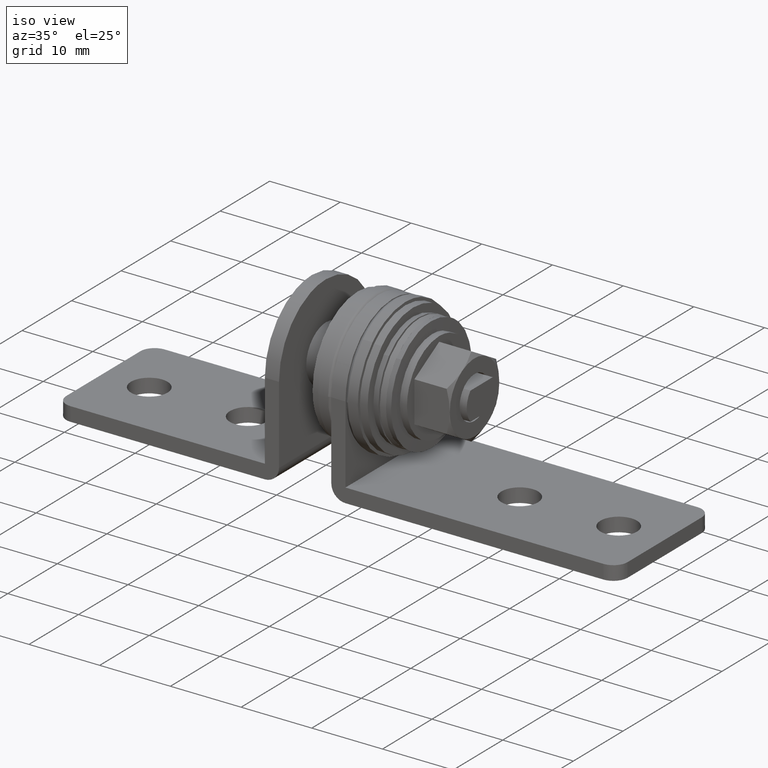
[diagram: clean part render]
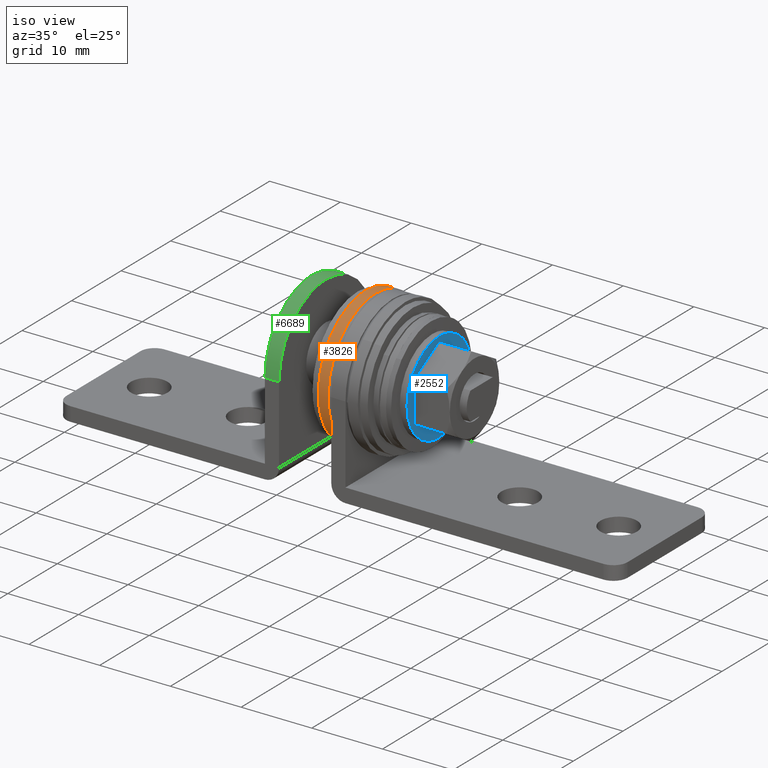
[diagram: same view with three faces highlighted in distinct colors, each labeled with its STEP entity id]
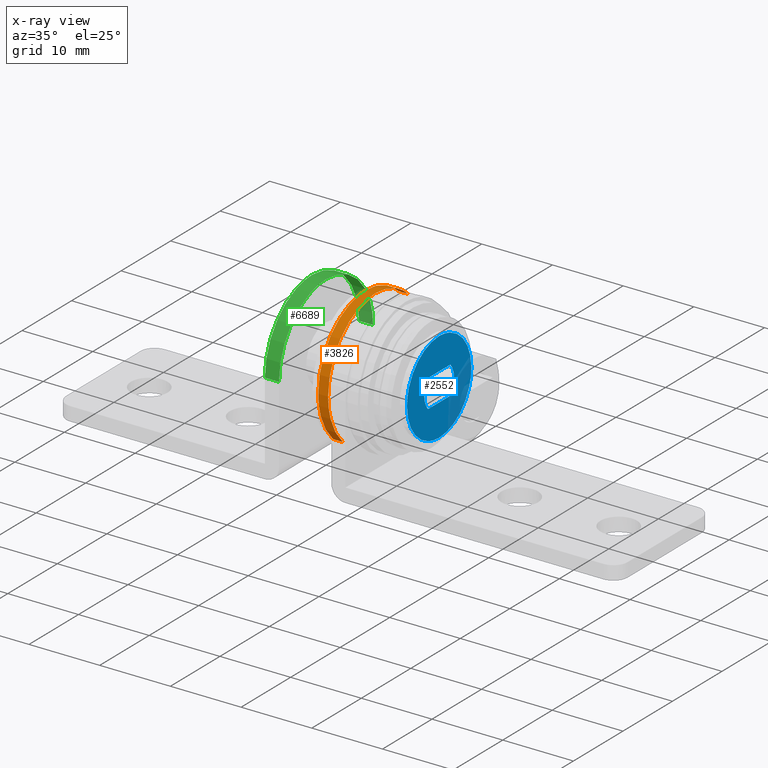
[diagram: x-ray of the same camera — body ghosted, the three highlighted faces saturated]
A machine part, iso view with three faces highlighted in distinct colors.
The next image is the same camera in x-ray (body ghosted, the three faces saturated) — at least one of them is partly hidden behind the body in this view.
Their STEP definitions:

[orange] entity #3826 — the highlighted face is a freeform B-spline surface patch.
#3245=CARTESIAN_POINT('',(7.000000001843407,-9.574999999999998,-1.331961E-014));
#3246=VERTEX_POINT('',#3245);
#3247=CARTESIAN_POINT('',(7.0,0.0,9.574999999999999));
#3248=VERTEX_POINT('',#3247);
#3249=CARTESIAN_POINT('',(7.000000001843407,-9.574999999999998,-1.331961E-014));
#3250=CARTESIAN_POINT('',(7.000000001786837,-9.575065300230753,0.587516732626124));
#3251=CARTESIAN_POINT('',(7.000000001673622,-9.475544291483420,1.664602495511528));
#3252=CARTESIAN_POINT('',(7.000000001509278,-9.115980017865249,3.011995462692536));
#3253=CARTESIAN_POINT('',(7.000000001344453,-8.620708814326063,4.228766799101693));
#3254=CARTESIAN_POINT('',(7.000000001187254,-8.030014796946121,5.271500300797510));
#3255=CARTESIAN_POINT('',(7.000000001009844,-7.230937467794300,6.315042081671660));
#3256=CARTESIAN_POINT('',(7.000000000836262,-6.334346550919273,7.222734181321780));
#3257=CARTESIAN_POINT('',(7.000000000669170,-5.349792724302551,7.971812144434629));
#3258=CARTESIAN_POINT('',(7.000000000486334,-4.144706213302773,8.669261751478709));
#3259=CARTESIAN_POINT('',(7.000000000323674,-2.939490900693783,9.151232044992161));
#3260=CARTESIAN_POINT('',(7.000000000149071,-1.468763285321292,9.495697102420269));
#3261=CARTESIAN_POINT('',(7.000000000052665,-0.548344357685661,9.575050803645766));
#3262=CARTESIAN_POINT('',(7.0,0.0,9.574999999999999));
#3263=B_SPLINE_CURVE_WITH_KNOTS('',3,(#3249,#3250,#3251,#3252,#3253,#3254,#3255,#3256,#3257,#3258,#3259,#3260,#3261,#3262),.UNSPECIFIED.,.F.,.U.,(4,1,1,1,1,1,1,1,1,1,1,4),(0.000000052687485,1.762538470771119,3.231332487533239,4.171362540858786,5.698902435431084,6.815200604752954,8.107697954677990,9.517736135739654,10.516527898758010,12.279076528888851,13.395373297230529,15.040398423046410),.UNSPECIFIED.);
#3264=EDGE_CURVE('',#3246,#3248,#3263,.T.);
#3325=CARTESIAN_POINT('',(7.000000000887582,6.590995047172648,6.945459616767318));
#3326=VERTEX_POINT('',#3325);
#3337=CARTESIAN_POINT('',(7.0,0.0,9.574999999999999));
#3338=CARTESIAN_POINT('',(7.000000000051023,0.530070574843590,9.575041883769375));
#3339=CARTESIAN_POINT('',(7.000000000157622,1.552334578589658,9.489893541043735));
#3340=CARTESIAN_POINT('',(7.000000000330322,2.989774696307046,9.133284675177393));
#3341=CARTESIAN_POINT('',(7.000000000492553,4.182706320588737,8.640844724963483));
#3342=CARTESIAN_POINT('',(7.000000000676647,5.402922615886867,7.948609635709143));
#3343=CARTESIAN_POINT('',(7.000000000805140,6.151617712857685,7.362522889965496));
#3344=CARTESIAN_POINT('',(7.000000000887582,6.590995047172648,6.945459616767318));
#3345=B_SPLINE_CURVE_WITH_KNOTS('',3,(#3337,#3338,#3339,#3340,#3341,#3342,#3343,#3344),.UNSPECIFIED.,.F.,.U.,(4,1,1,1,1,4),(5.374247E-009,1.590213461122649,3.066850167805985,4.429880036473404,5.452167828545722,7.269557102936135),.UNSPECIFIED.);
#3346=EDGE_CURVE('',#3248,#3326,#3345,.T.);
#3380=CARTESIAN_POINT('',(7.000000000887582,-6.590995047172648,-6.945459616767317));
#3381=VERTEX_POINT('',#3380);
#3382=CARTESIAN_POINT('',(7.000000000887582,-6.590995047172648,-6.945459616767317));
#3383=CARTESIAN_POINT('',(7.000000000967432,-7.016732327056829,-6.541530507234878));
#3384=CARTESIAN_POINT('',(7.000000001102751,-7.672985864009467,-5.792587908505754));
#3385=CARTESIAN_POINT('',(7.000000001320885,-8.551484624012055,-4.404789018725831));
#3386=CARTESIAN_POINT('',(7.000000001497807,-9.097316798217850,-3.111772616511035));
#3387=CARTESIAN_POINT('',(7.000000001684815,-9.484208611440474,-1.558191384182863));
#3388=CARTESIAN_POINT('',(7.000000001784718,-9.575079131411505,-0.607105421308737));
#3389=CARTESIAN_POINT('',(7.000000001843407,-9.574999999999998,-1.331961E-014));
#3390=B_SPLINE_CURVE_WITH_KNOTS('',3,(#3382,#3383,#3384,#3385,#3386,#3387,#3388,#3389),.UNSPECIFIED.,.F.,.U.,(4,1,1,1,1,4),(0.000000014444240,1.760587869820638,2.974790173644349,4.917504224431657,5.949575241573528,7.770873365595068),.UNSPECIFIED.);
#3391=EDGE_CURVE('',#3381,#3246,#3390,.T.);
#3700=CARTESIAN_POINT('',(5.600000000000001,6.590994857505450,6.945459419185621));
#3701=VERTEX_POINT('',#3700);
#3715=CARTESIAN_POINT('',(7.000000000887582,6.590995047172648,6.945459616767318));
#3716=CARTESIAN_POINT('',(5.600000000000001,6.590994857505450,6.945459419185621));
#3717=QUASI_UNIFORM_CURVE('',1,(#3715,#3716),.UNSPECIFIED.,.F.,.U.);
#3718=EDGE_CURVE('',#3326,#3701,#3717,.T.);
#3723=CARTESIAN_POINT('',(5.600000000000001,-6.590994857505478,-6.945459419185648));
#3724=VERTEX_POINT('',#3723);
#3725=CARTESIAN_POINT('',(7.000000000887582,-6.590995047172648,-6.945459616767317));
#3726=CARTESIAN_POINT('',(5.600000000000001,-6.590994857505478,-6.945459419185648));
#3727=QUASI_UNIFORM_CURVE('',1,(#3725,#3726),.UNSPECIFIED.,.F.,.U.);
#3728=EDGE_CURVE('',#3381,#3724,#3727,.T.);
#3762=CARTESIAN_POINT('',(7.035000001889493,-6.590995062267693,-6.945459602442653));
#3763=CARTESIAN_POINT('',(7.035000001889494,-13.536454664710345,-0.354464540174960));
#3764=CARTESIAN_POINT('',(7.035000001889493,-6.945459602442653,6.590995062267693));
#3765=CARTESIAN_POINT('',(7.035000001889494,-0.354464540174960,13.536454664710345));
#3766=CARTESIAN_POINT('',(7.035000001889493,6.590995062267693,6.945459602442653));
#3767=CARTESIAN_POINT('',(5.564124999952762,-6.590995062267693,-6.945459602442653));
#3768=CARTESIAN_POINT('',(5.564124999952762,-13.536454664710345,-0.354464540174960));
#3769=CARTESIAN_POINT('',(5.564124999952762,-6.945459602442653,6.590995062267693));
#3770=CARTESIAN_POINT('',(5.564124999952762,-0.354464540174960,13.536454664710345));
#3771=CARTESIAN_POINT('',(5.564124999952762,6.590995062267693,6.945459602442653));
#3779=(BOUNDED_SURFACE()B_SPLINE_SURFACE(2,1,((#3762,#3767),(#3763,#3768),(#3764,#3769),(#3765,#3770),(#3766,#3771)),.UNSPECIFIED.,.F.,.F.,.U.)B_SPLINE_SURFACE_WITH_KNOTS((3,2,3),(2,2),(0.0,15.864379438889539,31.728758877779072),(0.0,1.0),.UNSPECIFIED.)GEOMETRIC_REPRESENTATION_ITEM()RATIONAL_B_SPLINE_SURFACE(((1.0,1.0),(0.707106781186548,0.707106781186548),(1.0,1.0),(0.707106781186548,0.707106781186548),(1.0,1.0)))REPRESENTATION_ITEM('')SURFACE());
#3780=CARTESIAN_POINT('',(5.600000000000000,0.0,9.574999999999999));
#3781=VERTEX_POINT('',#3780);
#3782=CARTESIAN_POINT('',(5.600000000000000,0.0,9.574999999999999));
#3783=CARTESIAN_POINT('',(5.599999999999985,0.530066177181078,9.575028414568925));
#3784=CARTESIAN_POINT('',(5.600000000000016,1.703796759398604,9.477339199104309));
#3785=CARTESIAN_POINT('',(5.599999999999968,3.465764037984421,8.995629109281651));
#3786=CARTESIAN_POINT('',(5.600000000000097,5.163389577133457,8.136228149900415));
#3787=CARTESIAN_POINT('',(5.599999999999951,6.151607778543334,7.362507989877304));
#3788=CARTESIAN_POINT('',(5.600000000000001,6.590994857505450,6.945459419185621));
#3789=B_SPLINE_CURVE_WITH_KNOTS('',3,(#3782,#3783,#3784,#3785,#3786,#3787,#3788),.UNSPECIFIED.,.F.,.U.,(4,1,1,1,4),(5.371217E-009,1.590213438037686,3.521193318366556,5.452167749393814,7.269556997395088),.UNSPECIFIED.);
#3790=EDGE_CURVE('',#3781,#3701,#3789,.T.);
#3791=ORIENTED_EDGE('',*,*,#3790,.F.);
#3792=CARTESIAN_POINT('',(5.600000000000000,-9.574999999999937,0.000001097019174));
#3793=VERTEX_POINT('',#3792);
#3794=CARTESIAN_POINT('',(5.600000000000000,-9.574999999999937,0.000001097019174));
#3795=CARTESIAN_POINT('',(5.600000000000008,-9.575056144547215,0.587516569133459));
#3796=CARTESIAN_POINT('',(5.599999999999994,-9.468328211257504,1.742941369989528));
#3797=CARTESIAN_POINT('',(5.599999999999986,-9.028270940121166,3.314387353062296));
#3798=CARTESIAN_POINT('',(5.600000000000047,-8.315613740126473,4.845464194986282));
#3799=CARTESIAN_POINT('',(5.599999999999980,-7.424117299339975,6.119586410575806));
#3800=CARTESIAN_POINT('',(5.600000000000017,-6.320539273714079,7.236692284271585));
#3801=CARTESIAN_POINT('',(5.599999999999977,-5.114152489054289,8.148806899774309));
#3802=CARTESIAN_POINT('',(5.599999999999977,-3.700120133548185,8.882459223467185));
#3803=CARTESIAN_POINT('',(5.600000000000037,-1.958318358241487,9.434229543559685));
#3804=CARTESIAN_POINT('',(5.599999999999972,-0.724615005283694,9.575153714692322));
#3805=CARTESIAN_POINT('',(5.600000000000000,0.0,9.574999999999999));
#3806=B_SPLINE_CURVE_WITH_KNOTS('',3,(#3794,#3795,#3796,#3797,#3798,#3799,#3800,#3801,#3802,#3803,#3804,#3805),.UNSPECIFIED.,.F.,.U.,(4,1,1,1,1,1,1,1,1,4),(0.000000052737061,1.762538398308241,3.466340120901622,4.876382443556571,6.815200324424493,8.107697620977472,9.576498625328878,11.339049933463009,12.866594184182590,15.040397804747240),.UNSPECIFIED.);
#3807=EDGE_CURVE('',#3793,#3781,#3806,.T.);
#3808=ORIENTED_EDGE('',*,*,#3807,.F.);
#3809=CARTESIAN_POINT('',(5.600000000000001,-6.590994857505478,-6.945459419185648));
#3810=CARTESIAN_POINT('',(5.600000000000024,-7.193042682515891,-6.374491183544041));
#3811=CARTESIAN_POINT('',(5.599999999999953,-7.989847611840371,-5.391672302332482));
#3812=CARTESIAN_POINT('',(5.600000000000066,-8.878759471107449,-3.705089857772215));
#3813=CARTESIAN_POINT('',(5.599999999999971,-9.430430293253911,-2.023626161470892));
#3814=CARTESIAN_POINT('',(5.600000000000007,-9.575111559585420,-0.688051981345868));
#3815=CARTESIAN_POINT('',(5.600000000000000,-9.574999999999937,0.000001097019174));
#3816=B_SPLINE_CURVE_WITH_KNOTS('',3,(#3809,#3810,#3811,#3812,#3813,#3814,#3815),.UNSPECIFIED.,.F.,.U.,(4,1,1,1,4),(0.000000014448397,2.489112788928425,3.764021907486394,5.706735548933652,7.770874353055943),.UNSPECIFIED.);
#3817=EDGE_CURVE('',#3724,#3793,#3816,.T.);
#3818=ORIENTED_EDGE('',*,*,#3817,.F.);
#3819=ORIENTED_EDGE('',*,*,#3728,.F.);
#3820=ORIENTED_EDGE('',*,*,#3391,.T.);
#3821=ORIENTED_EDGE('',*,*,#3264,.T.);
#3822=ORIENTED_EDGE('',*,*,#3346,.T.);
#3823=ORIENTED_EDGE('',*,*,#3718,.T.);
#3824=EDGE_LOOP('',(#3791,#3808,#3818,#3819,#3820,#3821,#3822,#3823));
#3825=FACE_OUTER_BOUND('',#3824,.T.);
#3826=ADVANCED_FACE('',(#3825),#3779,.T.);

[blue] entity #2552 — the highlighted face is a freeform B-spline surface patch.
#2252=CARTESIAN_POINT('',(15.999999999917749,4.792302841791557,4.391336420869900));
#2253=VERTEX_POINT('',#2252);
#2259=CARTESIAN_POINT('',(15.999999999917749,6.499999999976643,0.000000645226018));
#2260=VERTEX_POINT('',#2259);
#2261=CARTESIAN_POINT('',(15.999999999917749,6.499999999976643,0.000000645226018));
#2262=CARTESIAN_POINT('',(15.999999999917771,6.500015795782520,0.351565430104913));
#2263=CARTESIAN_POINT('',(15.999999999917740,6.436714552915150,1.130035541484011));
#2264=CARTESIAN_POINT('',(15.999999999917771,6.111487784328303,2.349098613870125));
#2265=CARTESIAN_POINT('',(15.999999999917760,5.540033457296417,3.475672301886363));
#2266=CARTESIAN_POINT('',(15.999999999917740,5.029821983807251,4.132141663200727));
#2267=CARTESIAN_POINT('',(15.999999999917749,4.792302841791557,4.391336420869900));
#2268=B_SPLINE_CURVE_WITH_KNOTS('',3,(#2261,#2262,#2263,#2264,#2265,#2266,#2267),.UNSPECIFIED.,.F.,.U.,(4,1,1,1,4),(0.000000016921617,1.054702239702986,2.335423884652828,3.766796184556690,4.821498407338583),.UNSPECIFIED.);
#2269=EDGE_CURVE('',#2260,#2253,#2268,.T.);
#2271=CARTESIAN_POINT('',(15.999999999917749,-8.526513E-014,-6.499999999976760));
#2272=VERTEX_POINT('',#2271);
#2273=CARTESIAN_POINT('',(15.999999999917749,-8.526513E-014,-6.499999999976760));
#2274=CARTESIAN_POINT('',(15.999999999917719,0.584980960622043,-6.500209817820744));
#2275=CARTESIAN_POINT('',(15.999999999917771,1.515475157569317,-6.373474942612306));
#2276=CARTESIAN_POINT('',(15.999999999917760,2.743363608762771,-5.925578759355686));
#2277=CARTESIAN_POINT('',(15.999999999917691,3.579290087873212,-5.452021241792743));
#2278=CARTESIAN_POINT('',(15.999999999917749,4.338648967096136,-4.866858321992026));
#2279=CARTESIAN_POINT('',(15.999999999917719,5.032245616253382,-4.164757966093843));
#2280=CARTESIAN_POINT('',(15.999999999917710,5.580890148790245,-3.375455807531805));
#2281=CARTESIAN_POINT('',(15.999999999917870,6.023752305642542,-2.495642727028375));
#2282=CARTESIAN_POINT('',(15.999999999917410,6.388400063121082,-1.435748915387337));
#2283=CARTESIAN_POINT('',(15.999999999918151,6.500148243442589,-0.531793716678041));
#2284=CARTESIAN_POINT('',(15.999999999917749,6.499999999976643,0.000000645226018));
#2285=B_SPLINE_CURVE_WITH_KNOTS('',3,(#2273,#2274,#2275,#2276,#2277,#2278,#2279,#2280,#2281,#2282,#2283,#2284),.UNSPECIFIED.,.F.,.U.,(4,1,1,1,1,1,1,1,1,4),(0.000000052615752,1.754877210458966,2.791865637294587,3.908613120154944,4.626533183971660,5.663491330222731,6.859995461294258,7.498143588389896,8.614891326842637,10.210240552315330),.UNSPECIFIED.);
#2286=EDGE_CURVE('',#2272,#2260,#2285,.T.);
#2288=CARTESIAN_POINT('',(15.999999999917749,-4.792302841791750,-4.391336420869921));
#2289=VERTEX_POINT('',#2288);
#2290=CARTESIAN_POINT('',(15.999999999917749,-4.792302841791750,-4.391336420869921));
#2291=CARTESIAN_POINT('',(15.999999999917771,-4.564781219710254,-4.639656743114715));
#2292=CARTESIAN_POINT('',(15.999999999917710,-4.050449738020334,-5.120039626618506));
#2293=CARTESIAN_POINT('',(15.999999999917780,-3.113925486020229,-5.746321520197824));
#2294=CARTESIAN_POINT('',(15.999999999917760,-2.207991547278474,-6.137941601349054));
#2295=CARTESIAN_POINT('',(15.999999999917740,-1.150679030908001,-6.425483015854334));
#2296=CARTESIAN_POINT('',(15.999999999917771,-0.477135908889556,-6.500095492178114));
#2297=CARTESIAN_POINT('',(15.999999999917749,-8.526513E-014,-6.499999999976760));
#2298=B_SPLINE_CURVE_WITH_KNOTS('',3,(#2290,#2291,#2292,#2293,#2294,#2295,#2296,#2297),.UNSPECIFIED.,.F.,.U.,(4,1,1,1,1,4),(0.000000016222653,1.010384441374536,2.104982311116063,3.367962980393359,3.957356927397095,5.388741855320498),.UNSPECIFIED.);
#2299=EDGE_CURVE('',#2289,#2272,#2298,.T.);
#2395=CARTESIAN_POINT('',(15.999999999917749,-6.499999999976813,-0.000000645226144));
#2396=VERTEX_POINT('',#2395);
#2397=CARTESIAN_POINT('',(15.999999999917749,-6.499999999976813,-0.000000645226144));
#2398=CARTESIAN_POINT('',(15.999999999917730,-6.500116744964534,-0.527361454673280));
#2399=CARTESIAN_POINT('',(15.999999999917810,-6.392442166142776,-1.406210460238702));
#2400=CARTESIAN_POINT('',(15.999999999917710,-6.022848016616533,-2.504656005087403));
#2401=CARTESIAN_POINT('',(15.999999999917840,-5.533402194515568,-3.469633084604100));
#2402=CARTESIAN_POINT('',(15.999999999917730,-5.097741821397071,-4.058124052904712));
#2403=CARTESIAN_POINT('',(15.999999999917749,-4.792302841791750,-4.391336420869921));
#2404=B_SPLINE_CURVE_WITH_KNOTS('',3,(#2397,#2398,#2399,#2400,#2401,#2402,#2403),.UNSPECIFIED.,.F.,.U.,(4,1,1,1,4),(0.000000016921835,1.582059261761232,2.636744777589907,3.465451434911542,4.821498407338467),.UNSPECIFIED.);
#2405=EDGE_CURVE('',#2396,#2289,#2404,.T.);
#2407=CARTESIAN_POINT('',(15.999999999917749,-8.526513E-014,6.499999999976760));
#2408=VERTEX_POINT('',#2407);
#2409=CARTESIAN_POINT('',(15.999999999917749,-8.526513E-014,6.499999999976760));
#2410=CARTESIAN_POINT('',(15.999999999917760,-0.319066844470077,6.500011149584486));
#2411=CARTESIAN_POINT('',(15.999999999917730,-1.063562211014227,6.445104086821325));
#2412=CARTESIAN_POINT('',(15.999999999917810,-2.074302258863616,6.191937162237015));
#2413=CARTESIAN_POINT('',(15.999999999917691,-3.222543870848081,5.691438206676377));
#2414=CARTESIAN_POINT('',(15.999999999917900,-4.216567255789508,5.009437050915057));
#2415=CARTESIAN_POINT('',(15.999999999917691,-5.191865427696540,3.984999311405333));
#2416=CARTESIAN_POINT('',(15.999999999917820,-5.915274474250356,2.827133095929871));
#2417=CARTESIAN_POINT('',(15.999999999917700,-6.393818979126327,1.435774525726810));
#2418=CARTESIAN_POINT('',(15.999999999917771,-6.500072950513782,0.478601584488297));
#2419=CARTESIAN_POINT('',(15.999999999917749,-6.499999999976813,-0.000000645226144));
#2420=B_SPLINE_CURVE_WITH_KNOTS('',3,(#2409,#2410,#2411,#2412,#2413,#2414,#2415,#2416,#2417,#2418,#2419),.UNSPECIFIED.,.F.,.U.,(4,1,1,1,1,1,1,1,4),(0.000000052611945,0.957208699090886,2.233486932624188,3.110940168326952,4.706307766720970,5.823007897775320,7.338606377106387,8.774438378180809,10.210240552315421),.UNSPECIFIED.);
#2421=EDGE_CURVE('',#2408,#2396,#2420,.T.);
#2423=CARTESIAN_POINT('',(15.999999999917749,4.792302841791557,4.391336420869900));
#2424=CARTESIAN_POINT('',(15.999999999917700,4.470017190530772,4.743167611814060));
#2425=CARTESIAN_POINT('',(15.999999999917790,3.726257816917494,5.393947755315534));
#2426=CARTESIAN_POINT('',(15.999999999917801,2.456259956244617,6.075099964278061));
#2427=CARTESIAN_POINT('',(15.999999999917581,1.178780742500371,6.431314355046403));
#2428=CARTESIAN_POINT('',(15.999999999917881,0.364858402768864,6.500022334809899));
#2429=CARTESIAN_POINT('',(15.999999999917749,-8.526513E-014,6.499999999976760));
#2430=B_SPLINE_CURVE_WITH_KNOTS('',3,(#2423,#2424,#2425,#2426,#2427,#2428,#2429),.UNSPECIFIED.,.F.,.U.,(4,1,1,1,4),(0.000000016223161,1.431384944150338,2.946954302121133,4.294156883262043,5.388741855320480),.UNSPECIFIED.);
#2431=EDGE_CURVE('',#2253,#2408,#2430,.T.);
#2495=CARTESIAN_POINT('',(15.999999999917700,-7.149349974777967,7.149349974777914));
#2496=CARTESIAN_POINT('',(15.999999999917700,7.149350323464968,7.149349974777914));
#2497=CARTESIAN_POINT('',(15.999999999917700,-7.149349974777967,-7.149350323465086));
#2498=CARTESIAN_POINT('',(15.999999999917700,7.149350323464968,-7.149350323465086));
#2499=B_SPLINE_SURFACE_WITH_KNOTS('',1,1,((#2495,#2497),(#2496,#2498)),.UNSPECIFIED.,.F.,.F.,.U.,(2,2),(2,2),(0.0,14.298700298242940),(0.0,14.298700298243000),.UNSPECIFIED.);
#2500=ORIENTED_EDGE('',*,*,#2421,.T.);
#2501=ORIENTED_EDGE('',*,*,#2405,.T.);
#2502=ORIENTED_EDGE('',*,*,#2299,.T.);
#2503=ORIENTED_EDGE('',*,*,#2286,.T.);
#2504=ORIENTED_EDGE('',*,*,#2269,.T.);
#2505=ORIENTED_EDGE('',*,*,#2431,.T.);
#2506=EDGE_LOOP('',(#2500,#2501,#2502,#2503,#2504,#2505));
#2507=FACE_OUTER_BOUND('',#2506,.T.);
#2508=CARTESIAN_POINT('',(15.999999999917749,-2.258317958127330,1.990000000000000));
#2509=VERTEX_POINT('',#2508);
#2510=CARTESIAN_POINT('',(15.999999999917749,-2.258317958127330,-1.990000000000000));
#2511=VERTEX_POINT('',#2510);
#2512=CARTESIAN_POINT('',(15.999999999917749,-2.258317958127330,1.990000000000000));
#2513=CARTESIAN_POINT('',(15.999999999917700,-2.430571543085430,1.794638088679945));
#2514=CARTESIAN_POINT('',(15.999999999917810,-2.717460430349838,1.368290277376432));
#2515=CARTESIAN_POINT('',(15.999999999917730,-2.929734326579126,0.765541756959900));
#2516=CARTESIAN_POINT('',(15.999999999917749,-3.020968786370330,0.171169169727555));
#2517=CARTESIAN_POINT('',(15.999999999917669,-3.007386483663838,-0.432669456857211));
#2518=CARTESIAN_POINT('',(15.999999999917810,-2.796509841162988,-1.226782108116086));
#2519=CARTESIAN_POINT('',(15.999999999917760,-2.483110747371608,-1.735250532453597));
#2520=CARTESIAN_POINT('',(15.999999999917749,-2.258317958127330,-1.990000000000000));
#2521=B_SPLINE_CURVE_WITH_KNOTS('',3,(#2512,#2513,#2514,#2515,#2516,#2517,#2518,#2519,#2520),.UNSPECIFIED.,.F.,.U.,(4,1,1,1,1,1,4),(0.000000079447736,0.781353376066364,1.528747237651128,1.902449656974461,2.581849062133959,3.329251484075844,4.348409400597254),.UNSPECIFIED.);
#2522=EDGE_CURVE('',#2509,#2511,#2521,.T.);
#2523=ORIENTED_EDGE('',*,*,#2522,.F.);
#2524=CARTESIAN_POINT('',(15.999999999917749,2.258317958127160,1.990000000000000));
#2525=VERTEX_POINT('',#2524);
#2526=CARTESIAN_POINT('',(15.999999999917749,2.258317958127160,1.990000000000000));
#2527=CARTESIAN_POINT('',(15.999999999917749,-2.258317958127330,1.990000000000000));
#2528=QUASI_UNIFORM_CURVE('',1,(#2526,#2527),.UNSPECIFIED.,.F.,.U.);
#2529=EDGE_CURVE('',#2525,#2509,#2528,.T.);
#2530=ORIENTED_EDGE('',*,*,#2529,.F.);
#2531=CARTESIAN_POINT('',(15.999999999917749,2.258317958127155,-1.990000000000000));
#2532=VERTEX_POINT('',#2531);
#2533=CARTESIAN_POINT('',(15.999999999917749,2.258317958127155,-1.990000000000000));
#2534=CARTESIAN_POINT('',(15.999999999917760,2.430565284411150,-1.794634060269384));
#2535=CARTESIAN_POINT('',(15.999999999917730,2.691943762603495,-1.406184760213140));
#2536=CARTESIAN_POINT('',(15.999999999917760,2.917163761515722,-0.809872889150897));
#2537=CARTESIAN_POINT('',(15.999999999917749,3.022003119468680,-0.216744771901849));
#2538=CARTESIAN_POINT('',(15.999999999917749,3.007382358487848,0.432669177005023));
#2539=CARTESIAN_POINT('',(15.999999999917780,2.796513893080699,1.226782337265870));
#2540=CARTESIAN_POINT('',(15.999999999917730,2.483109204986198,1.735250373440850));
#2541=CARTESIAN_POINT('',(15.999999999917749,2.258317958127160,1.990000000000000));
#2542=B_SPLINE_CURVE_WITH_KNOTS('',3,(#2533,#2534,#2535,#2536,#2537,#2538,#2539,#2540,#2541),.UNSPECIFIED.,.F.,.U.,(4,1,1,1,1,1,4),(0.000000079447097,0.781353376065894,1.392858339346492,1.902449656974175,2.581849062133785,3.329251484075769,4.348409400597256),.UNSPECIFIED.);
#2543=EDGE_CURVE('',#2532,#2525,#2542,.T.);
#2544=ORIENTED_EDGE('',*,*,#2543,.F.);
#2545=CARTESIAN_POINT('',(15.999999999917749,-2.258317958127330,-1.990000000000000));
#2546=CARTESIAN_POINT('',(15.999999999917749,2.258317958127155,-1.990000000000000));
#2547=QUASI_UNIFORM_CURVE('',1,(#2545,#2546),.UNSPECIFIED.,.F.,.U.);
#2548=EDGE_CURVE('',#2511,#2532,#2547,.T.);
#2549=ORIENTED_EDGE('',*,*,#2548,.F.);
#2550=EDGE_LOOP('',(#2523,#2530,#2544,#2549));
#2551=FACE_BOUND('',#2550,.T.);
#2552=ADVANCED_FACE('',(#2507,#2551),#2499,.F.);

[green] entity #6689 — the highlighted face is a freeform B-spline surface patch.
#6527=CARTESIAN_POINT('',(-2.050000000000000,-9.496744587267832,-0.248681008924810));
#6528=CARTESIAN_POINT('',(0.051250000000000,-9.496744587267832,-0.248681008924810));
#6529=CARTESIAN_POINT('',(-2.050000000000000,-9.758799692007614,9.758799692007541));
#6530=CARTESIAN_POINT('',(0.051250000000000,-9.758799692007614,9.758799692007541));
#6531=CARTESIAN_POINT('',(-2.050000000000000,0.248681008924738,9.496744587267790));
#6532=CARTESIAN_POINT('',(0.051250000000000,0.248681008924738,9.496744587267790));
#6533=CARTESIAN_POINT('',(-2.050000000000000,10.256161709857089,9.234689482528038));
#6534=CARTESIAN_POINT('',(0.051250000000000,10.256161709857089,9.234689482528038));
#6535=CARTESIAN_POINT('',(-2.050000000000000,9.470714670464670,-0.745361409414512));
#6536=CARTESIAN_POINT('',(0.051250000000000,9.470714670464670,-0.745361409414512));
#6544=(BOUNDED_SURFACE()B_SPLINE_SURFACE(1,2,((#6527,#6529,#6531,#6533,#6535),(#6528,#6530,#6532,#6534,#6536)),.UNSPECIFIED.,.F.,.F.,.U.)B_SPLINE_SURFACE_WITH_KNOTS((2,2),(3,2,3),(0.0,2.101250000000000),(0.0,16.326088426739759,32.652176853479517),.UNSPECIFIED.)GEOMETRIC_REPRESENTATION_ITEM()RATIONAL_B_SPLINE_SURFACE(((1.0,0.688354575693754,1.0,0.688354575693754,1.0),(1.0,0.688354575693754,1.0,0.688354575693754,1.0)))REPRESENTATION_ITEM('')SURFACE());
#6545=CARTESIAN_POINT('',(0.0,-9.500000000000000,0.0));
#6546=VERTEX_POINT('',#6545);
#6547=CARTESIAN_POINT('',(0.0,0.000001091461113,9.499999999999938));
#6548=VERTEX_POINT('',#6547);
#6549=CARTESIAN_POINT('',(0.0,-9.500000000000000,0.0));
#6550=CARTESIAN_POINT('',(0.0,-9.500003318183513,0.310884976905478));
#6551=CARTESIAN_POINT('',(0.0,-9.483769695889885,0.641192700150575));
#6552=CARTESIAN_POINT('',(0.0,-9.448474520049363,0.989148912323931));
#6553=CARTESIAN_POINT('',(0.0,-9.441876839754892,1.047060006333372));
#6554=CARTESIAN_POINT('',(0.0,-9.433461362205861,1.124325464279339));
#6555=CARTESIAN_POINT('',(0.0,-9.381042335986884,1.548584628759609));
#6556=CARTESIAN_POINT('',(0.0,-9.218091619730876,2.409154602852212));
#6557=CARTESIAN_POINT('',(0.0,-8.747596656828319,3.833698001574915));
#6558=CARTESIAN_POINT('',(0.0,-7.890604841279710,5.413562974735553));
#6559=CARTESIAN_POINT('',(0.0,-7.016503091505712,6.439747960346733));
#6560=CARTESIAN_POINT('',(0.0,-6.508372830386429,6.920465713787933));
#6561=CARTESIAN_POINT('',(0.0,-6.465563808953458,6.960017956643205));
#6562=CARTESIAN_POINT('',(0.0,-6.408726773088409,7.013031695912032));
#6563=CARTESIAN_POINT('',(0.0,-6.163899464161124,7.234787628881228));
#6564=CARTESIAN_POINT('',(0.0,-5.893287565653375,7.456877011799310));
#6565=CARTESIAN_POINT('',(0.0,-5.628021684127183,7.653730645487397));
#6566=CARTESIAN_POINT('',(0.0,-5.549219250017572,7.710547134489664));
#6567=CARTESIAN_POINT('',(0.0,-5.486300433211820,7.756177097915343));
#6568=CARTESIAN_POINT('',(0.0,-5.422285380249799,7.800255181449959));
#6569=CARTESIAN_POINT('',(0.0,-5.358558641910932,7.844747360172597));
#6570=CARTESIAN_POINT('',(0.0,-4.924097395373821,8.138836519579929));
#6571=CARTESIAN_POINT('',(0.0,-4.076481458987952,8.618990066606738));
#6572=CARTESIAN_POINT('',(0.0,-2.913103769051570,9.067751050989960));
#6573=CARTESIAN_POINT('',(0.0,-1.554393824623596,9.408090445974985));
#6574=CARTESIAN_POINT('',(0.0,-0.621773637521252,9.500081772986434));
#6575=CARTESIAN_POINT('',(0.0,0.000001091461113,9.499999999999938));
#6576=B_SPLINE_CURVE_WITH_KNOTS('',3,(#6549,#6550,#6551,#6552,#6553,#6554,#6555,#6556,#6557,#6558,#6559,#6560,#6561,#6562,#6563,#6564,#6565,#6566,#6567,#6568,#6569,#6570,#6571,#6572,#6573,#6574,#6575),.UNSPECIFIED.,.F.,.U.,(4,1,1,1,1,1,1,1,1,1,1,1,1,1,1,1,1,1,1,1,1,1,1,1,4),(0.000122050610035,0.932778051672756,0.991050231640322,1.049341878705819,1.107633525771300,1.224216809621401,2.331767397000592,3.730757212724209,5.712672033202788,7.694543929214185,7.752814866855053,7.811106854332604,7.869398841810162,7.985982967734681,8.802071802152721,8.918655557875770,8.976947369781094,9.093521353887574,9.151812809082566,9.210104264277556,9.326687253871976,10.725685729326861,12.124685087904650,13.057350482140510,14.922650224941110),.UNSPECIFIED.);
#6577=EDGE_CURVE('',#6546,#6548,#6576,.T.);
#6578=ORIENTED_EDGE('',*,*,#6577,.T.);
#6579=CARTESIAN_POINT('',(0.0,9.500000000000000,1.163376E-015));
#6580=VERTEX_POINT('',#6579);
#6581=CARTESIAN_POINT('',(0.0,0.000001091461113,9.499999999999938));
#6582=CARTESIAN_POINT('',(0.0,0.310886009122561,9.500003355353954));
#6583=CARTESIAN_POINT('',(0.0,0.641193772578246,9.483769769902537));
#6584=CARTESIAN_POINT('',(0.0,0.989149924436346,9.448474634560188));
#6585=CARTESIAN_POINT('',(0.0,1.047060945286385,9.441876608246961));
#6586=CARTESIAN_POINT('',(0.0,1.124325392827660,9.433454422748781));
#6587=CARTESIAN_POINT('',(0.0,1.702870591799936,9.362057915908570));
#6588=CARTESIAN_POINT('',(0.0,2.636899859698745,9.161267907824662));
#6589=CARTESIAN_POINT('',(0.0,3.968959937997717,8.666131704462480));
#6590=CARTESIAN_POINT('',(0.0,5.408249566332641,7.885494015070102));
#6591=CARTESIAN_POINT('',(0.0,6.386355625471657,7.072995536471092));
#6592=CARTESIAN_POINT('',(0.0,6.920454074211022,6.508360322927003));
#6593=CARTESIAN_POINT('',(0.0,6.960018576828182,6.465564535275973));
#6594=CARTESIAN_POINT('',(0.0,7.013032416149248,6.408727626274219));
#6595=CARTESIAN_POINT('',(0.0,7.234788299329907,6.163900302950519));
#6596=CARTESIAN_POINT('',(0.0,7.456877648811186,5.893288415622908));
#6597=CARTESIAN_POINT('',(0.0,7.653731236117690,5.628022533023431));
#6598=CARTESIAN_POINT('',(0.0,7.710547717005661,5.549220102839096));
#6599=CARTESIAN_POINT('',(0.0,7.756177647830609,5.486301272844214));
#6600=CARTESIAN_POINT('',(0.0,7.800255802456206,5.422286271717768));
#6601=CARTESIAN_POINT('',(0.0,7.844750346102920,5.358561108452704));
#6602=CARTESIAN_POINT('',(0.0,8.095247080006555,4.988449231646881));
#6603=CARTESIAN_POINT('',(0.0,8.546172053390199,4.214773353313949));
#6604=CARTESIAN_POINT('',(0.0,8.993526323080845,3.134763348639575));
#6605=CARTESIAN_POINT('',(0.0,9.387878791024825,1.709819124595866));
#6606=CARTESIAN_POINT('',(0.0,9.500135840824266,0.699503600662537));
#6607=CARTESIAN_POINT('',(0.0,9.500000000000000,1.163376E-015));
#6608=B_SPLINE_CURVE_WITH_KNOTS('',3,(#6581,#6582,#6583,#6584,#6585,#6586,#6587,#6588,#6589,#6590,#6591,#6592,#6593,#6594,#6595,#6596,#6597,#6598,#6599,#6600,#6601,#6602,#6603,#6604,#6605,#6606,#6607),.UNSPECIFIED.,.F.,.U.,(4,1,1,1,1,1,1,1,1,1,1,1,1,1,1,1,1,1,1,1,1,1,1,1,4),(0.000122050691978,0.932777974755250,0.991050150001547,1.049341792263169,1.107633434524807,1.224216708766820,2.798095504104591,3.963922865187906,5.479504995041630,7.694543293798724,7.752814227754239,7.811106210467458,7.869398193180675,7.985982309569892,8.802071077028737,8.918654823155473,8.976946630259054,9.093520603788431,9.151812054192519,9.210103504596594,9.326686484605673,10.492518311490009,11.891517578611460,12.824183267023971,14.922648994602341),.UNSPECIFIED.);
#6609=EDGE_CURVE('',#6548,#6580,#6608,.T.);
#6610=ORIENTED_EDGE('',*,*,#6609,.T.);
#6611=CARTESIAN_POINT('',(-2.0,9.500000000000000,1.163376E-015));
#6612=VERTEX_POINT('',#6611);
#6613=CARTESIAN_POINT('',(-2.0,9.500000000000000,1.163376E-015));
#6614=CARTESIAN_POINT('',(0.0,9.500000000000000,1.163376E-015));
#6615=QUASI_UNIFORM_CURVE('',1,(#6613,#6614),.UNSPECIFIED.,.F.,.U.);
#6616=EDGE_CURVE('',#6612,#6580,#6615,.T.);
#6617=ORIENTED_EDGE('',*,*,#6616,.F.);
#6618=CARTESIAN_POINT('',(-2.0,0.000001091461113,9.499999999999938));
#6619=VERTEX_POINT('',#6618);
#6620=CARTESIAN_POINT('',(-2.0,0.000001091461113,9.499999999999938));
#6621=CARTESIAN_POINT('',(-2.000000000000004,0.310886009122561,9.500003355353954));
#6622=CARTESIAN_POINT('',(-2.0,0.641193772578245,9.483769769902537));
#6623=CARTESIAN_POINT('',(-2.000000000000001,0.989149924436346,9.448474634560188));
#6624=CARTESIAN_POINT('',(-2.0,1.047060945286385,9.441876608246961));
#6625=CARTESIAN_POINT('',(-2.0,1.124325392827660,9.433454422748781));
#6626=CARTESIAN_POINT('',(-2.000000000000008,1.702870591799936,9.362057915908572));
#6627=CARTESIAN_POINT('',(-1.999999999999996,2.636899859698745,9.161267907824662));
#6628=CARTESIAN_POINT('',(-2.000000000000020,3.968959937997717,8.666131704462478));
#6629=CARTESIAN_POINT('',(-1.999999999999840,5.408249566332636,7.885494015070102));
#6630=CARTESIAN_POINT('',(-2.000000000000324,6.386355625471664,7.072995536471098));
#6631=CARTESIAN_POINT('',(-2.000000000000192,6.920454074211022,6.508360322927001));
#6632=CARTESIAN_POINT('',(-1.999999999999979,6.960018576828182,6.465564535275973));
#6633=CARTESIAN_POINT('',(-2.000000000000004,7.013032416149248,6.408727626274219));
#6634=CARTESIAN_POINT('',(-1.999999999999999,7.234788299329907,6.163900302950519));
#6635=CARTESIAN_POINT('',(-2.000000000000001,7.456877648811186,5.893288415622908));
#6636=CARTESIAN_POINT('',(-2.0,7.653731236117690,5.628022533023431));
#6637=CARTESIAN_POINT('',(-2.0,7.710547717005661,5.549220102839096));
#6638=CARTESIAN_POINT('',(-2.0,7.756177647830609,5.486301272844214));
#6639=CARTESIAN_POINT('',(-2.0,7.800255802456206,5.422286271717768));
#6640=CARTESIAN_POINT('',(-1.999999999999998,7.844750346102920,5.358561108452704));
#6641=CARTESIAN_POINT('',(-2.000000000000019,8.095247080006555,4.988449231646881));
#6642=CARTESIAN_POINT('',(-1.999999999999958,8.546172053390199,4.214773353313949));
#6643=CARTESIAN_POINT('',(-1.999999999999988,8.993526323080845,3.134763348639575));
#6644=CARTESIAN_POINT('',(-2.000000000000176,9.387878791024825,1.709819124595867));
#6645=CARTESIAN_POINT('',(-1.999999999999788,9.500135840824266,0.699503600662536));
#6646=CARTESIAN_POINT('',(-2.0,9.500000000000000,1.163376E-015));
#6647=B_SPLINE_CURVE_WITH_KNOTS('',3,(#6620,#6621,#6622,#6623,#6624,#6625,#6626,#6627,#6628,#6629,#6630,#6631,#6632,#6633,#6634,#6635,#6636,#6637,#6638,#6639,#6640,#6641,#6642,#6643,#6644,#6645,#6646),.UNSPECIFIED.,.F.,.U.,(4,1,1,1,1,1,1,1,1,1,1,1,1,1,1,1,1,1,1,1,1,1,1,1,4),(0.000122050691978,0.932777974755250,0.991050150001547,1.049341792263169,1.107633434524807,1.224216708766820,2.798095504104591,3.963922865187906,5.479504995041630,7.694543293798724,7.752814227754239,7.811106210467458,7.869398193180675,7.985982309569892,8.802071077028737,8.918654823155473,8.976946630259054,9.093520603788431,9.151812054192519,9.210103504596594,9.326686484605673,10.492518311490009,11.891517578611460,12.824183267023971,14.922648994602341),.UNSPECIFIED.);
#6648=EDGE_CURVE('',#6619,#6612,#6647,.T.);
#6649=ORIENTED_EDGE('',*,*,#6648,.F.);
#6650=CARTESIAN_POINT('',(-2.0,-9.500000000000000,0.0));
#6651=VERTEX_POINT('',#6650);
#6652=CARTESIAN_POINT('',(-2.0,-9.500000000000000,0.0));
#6653=CARTESIAN_POINT('',(-2.0,-9.500003319643326,0.310884943323061));
#6654=CARTESIAN_POINT('',(-1.999999999999999,-9.483769696171139,0.641192732166246));
#6655=CARTESIAN_POINT('',(-2.000000000000001,-9.448474520021859,0.989148908877235));
#6656=CARTESIAN_POINT('',(-2.0,-9.441876839752055,1.047060005935709));
#6657=CARTESIAN_POINT('',(-2.0,-9.433461362234587,1.124325464426897));
#6658=CARTESIAN_POINT('',(-2.000000000000001,-9.381042335568720,1.548584627646499));
#6659=CARTESIAN_POINT('',(-1.999999999999994,-9.218091619760449,2.409154606463020));
#6660=CARTESIAN_POINT('',(-2.000000000000045,-8.747596663797925,3.833697994198074));
#6661=CARTESIAN_POINT('',(-1.999999999999863,-7.890604835403750,5.413562975374653));
#6662=CARTESIAN_POINT('',(-2.000000000000203,-7.016503034346781,6.439748025547190));
#6663=CARTESIAN_POINT('',(-1.999999999999991,-6.508372852551528,6.920465691921880));
#6664=CARTESIAN_POINT('',(-1.999999999999994,-6.465563807136101,6.960017958014625));
#6665=CARTESIAN_POINT('',(-2.000000000000002,-6.408726773444750,7.013031695643129));
#6666=CARTESIAN_POINT('',(-2.0,-6.163899464063778,7.234787628954686));
#6667=CARTESIAN_POINT('',(-2.0,-5.893287565676793,7.456877011781638));
#6668=CARTESIAN_POINT('',(-2.0,-5.628021684125172,7.653730645488915));
#6669=CARTESIAN_POINT('',(-2.0,-5.549219250017970,7.710547134489366));
#6670=CARTESIAN_POINT('',(-2.0,-5.486300433211692,7.756177097915439));
#6671=CARTESIAN_POINT('',(-2.0,-5.422285380249821,7.800255181449942));
#6672=CARTESIAN_POINT('',(-2.0,-5.358558641910932,7.844747360172597));
#6673=CARTESIAN_POINT('',(-1.999999999999987,-4.924097395373821,8.138836519579929));
#6674=CARTESIAN_POINT('',(-2.000000000000036,-4.076481458987952,8.618990066606738));
#6675=CARTESIAN_POINT('',(-2.000000000000049,-2.913103769051570,9.067751050989960));
#6676=CARTESIAN_POINT('',(-1.999999999999575,-1.554393824623596,9.408090445974985));
#6677=CARTESIAN_POINT('',(-2.000000000000716,-0.621773637521252,9.500081772986434));
#6678=CARTESIAN_POINT('',(-2.0,0.000001091461113,9.499999999999938));
#6679=B_SPLINE_CURVE_WITH_KNOTS('',3,(#6652,#6653,#6654,#6655,#6656,#6657,#6658,#6659,#6660,#6661,#6662,#6663,#6664,#6665,#6666,#6667,#6668,#6669,#6670,#6671,#6672,#6673,#6674,#6675,#6676,#6677,#6678),.UNSPECIFIED.,.F.,.U.,(4,1,1,1,1,1,1,1,1,1,1,1,1,1,1,1,1,1,1,1,1,1,1,1,4),(0.000122050610035,0.932778051672756,0.991050231640322,1.049341878705819,1.107633525771300,1.224216809621401,2.331767397000592,3.730757212724209,5.712672033202788,7.694543929214185,7.752814866855053,7.811106854332604,7.869398841810162,7.985982967734681,8.802071802152721,8.918655557875770,8.976947369781094,9.093521353887574,9.151812809082566,9.210104264277556,9.326687253871976,10.725685729326861,12.124685087904650,13.057350482140510,14.922650224941110),.UNSPECIFIED.);
#6680=EDGE_CURVE('',#6651,#6619,#6679,.T.);
#6681=ORIENTED_EDGE('',*,*,#6680,.F.);
#6682=CARTESIAN_POINT('',(-2.0,-9.500000000000000,0.0));
#6683=CARTESIAN_POINT('',(0.0,-9.500000000000000,0.0));
#6684=QUASI_UNIFORM_CURVE('',1,(#6682,#6683),.UNSPECIFIED.,.F.,.U.);
#6685=EDGE_CURVE('',#6651,#6546,#6684,.T.);
#6686=ORIENTED_EDGE('',*,*,#6685,.T.);
#6687=EDGE_LOOP('',(#6578,#6610,#6617,#6649,#6681,#6686));
#6688=FACE_OUTER_BOUND('',#6687,.T.);
#6689=ADVANCED_FACE('',(#6688),#6544,.T.);